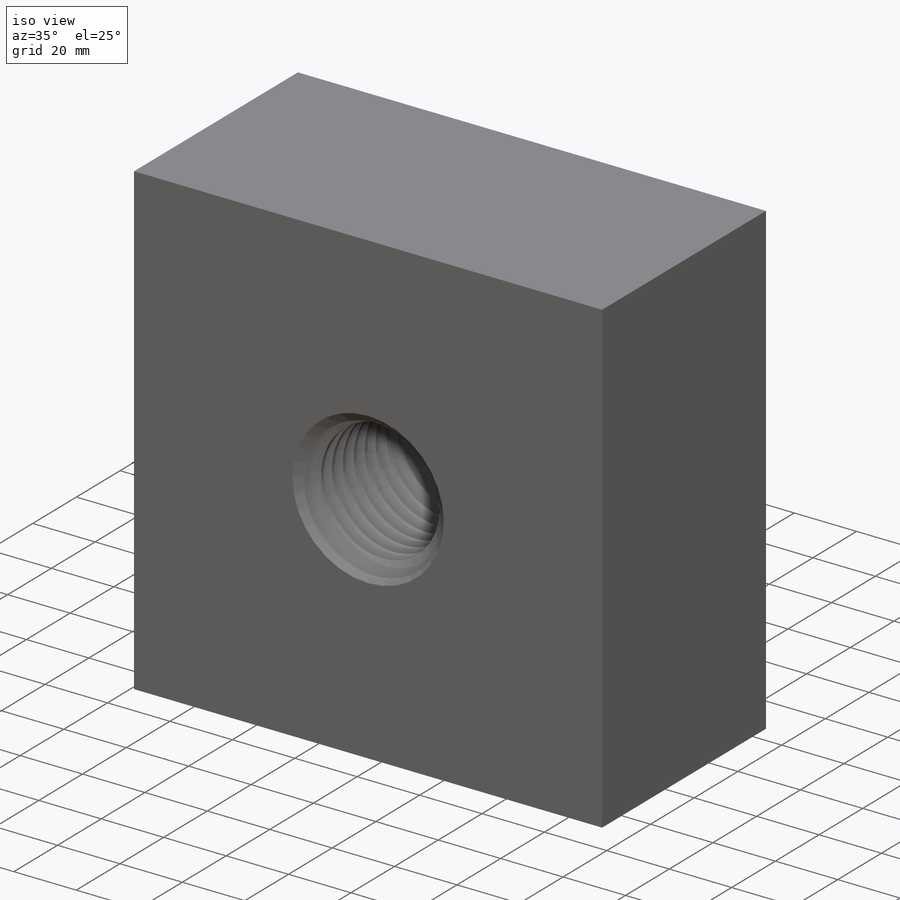
[diagram: iso view]
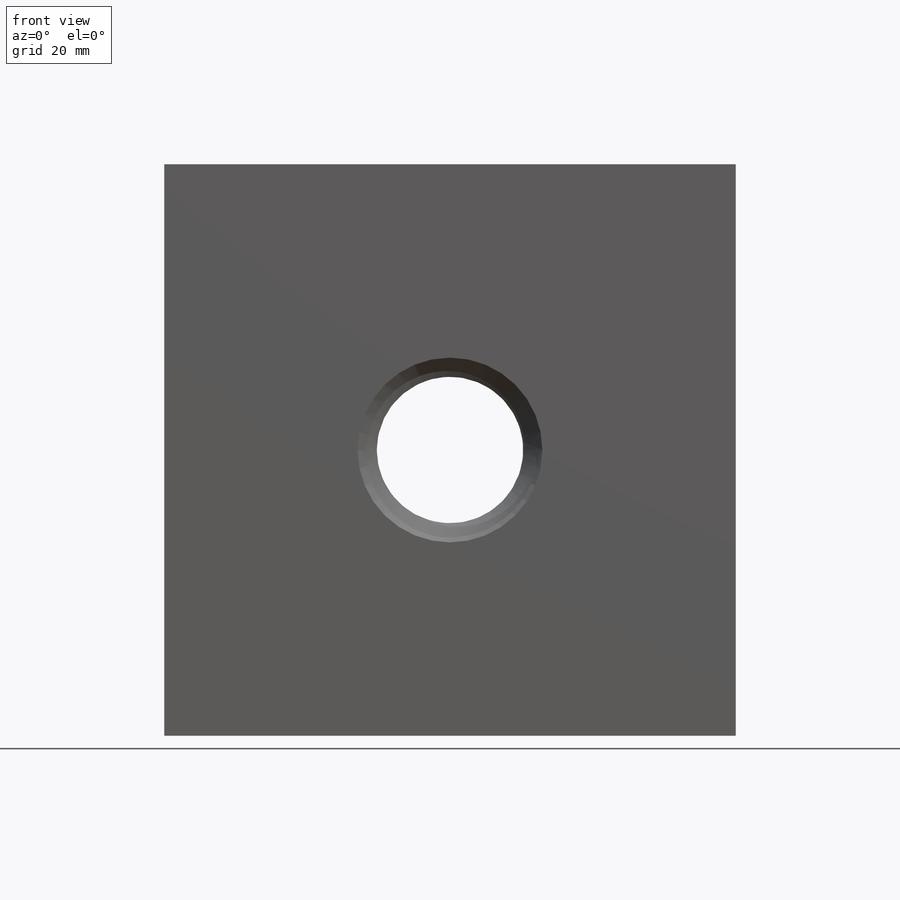
[diagram: front view]
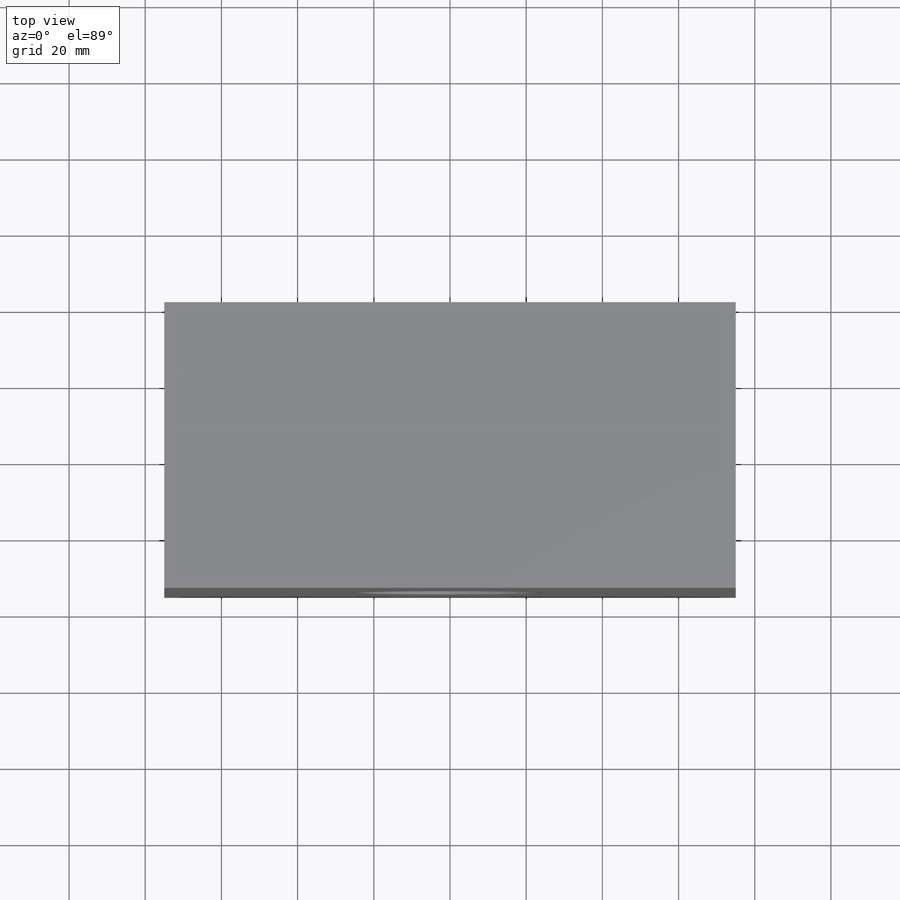
[diagram: top view]
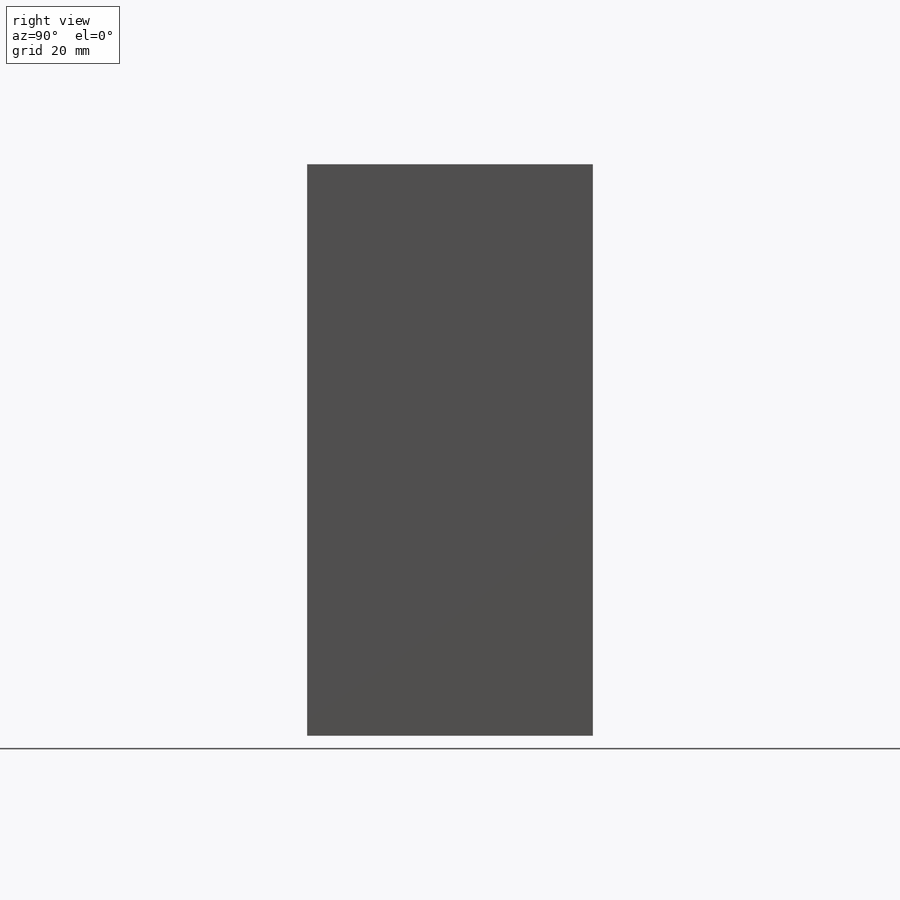
[diagram: right view]
SOLIDWORKS PART (.sldprt)
format: sldprt  version: not decoded by parser v0  size: 430,592 bytes
history: native  units: mm
features: plane x4, sketch x4, material x1, extrude x1, helix x1, chamfer x1, sweep x1, cut_revolve x1 (+8 scaffold rows collapsed)
feature tree (22):
  scaffold x8  (default folders/planes/origin — collapsed)
  material  "Material <nicht festgelegt>"
  plane  "Ebene vorne"
  plane  "Ebene oben"
  plane  "Ebene rechts"
  sketch  "Skizze1"  dims[D2=38.5mm D1=150.0mm]
  extrude  "Aufsatz-Linear austragen1"  Depth=75mm
  sketch  "Skizze3"  dims[D1=46.0mm]
  helix  "Spirale/Helix1"  Pitch=46mm
  chamfer  "Fase1"  Distance=5mm Angle=45deg
  sketch  "Skizze4"  dims[c1.D1=~15.47364mm c2.D1=30.0deg c2.D2=~14.94978mm c3.D2=33.0deg c3.D3=1.32mm c3.D4=3.75mm]
  sweep  "Schnitt-Austragung1"
  sketch  "Skizze5"  dims[D2=25.0mm D1=0.0mm]
  plane  "Ebene1"
  cut_revolve  "Schnitt-Rotation1"  Angle=90deg
decode coverage: 8 of 9 modeling features carry decoded parameters
note: ~ marks probable driven/reference dimensions
note: suppression state not decoded; provenance and decode notes live in map.json
